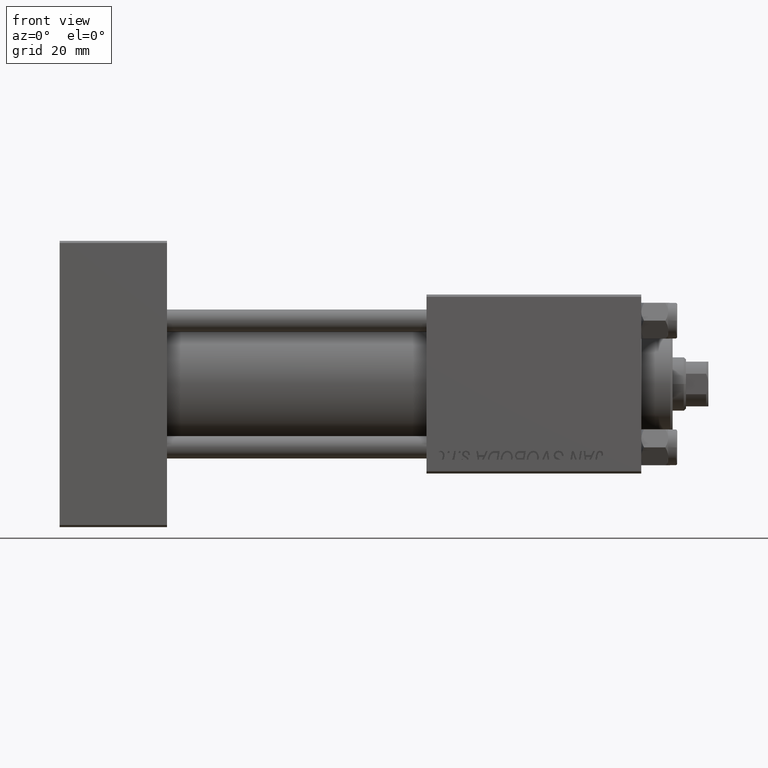
[diagram: clean part render]
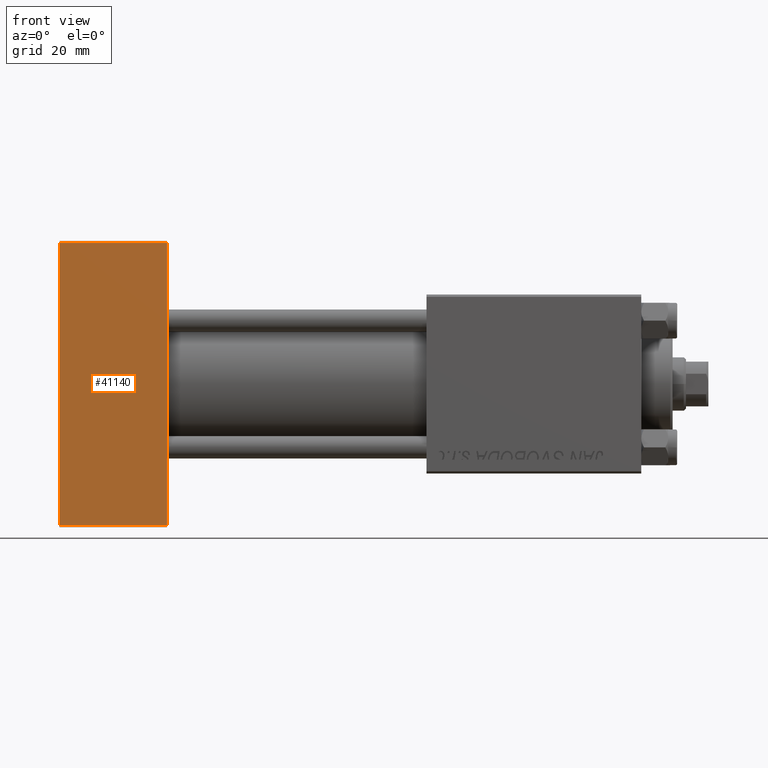
[diagram: same view with one face highlighted and labeled with its STEP entity id]
A machine part, front view. The second image highlights one B-rep face of the part: STEP entity #41140.
In plain terms, the highlighted planar face has unit normal (0, 1, 0).
Its self-contained STEP definition (entity closure, byte-faithful):
#1398 = CARTESIAN_POINT ( 'NONE',  ( 24.00000000000000000, -20.00000000000000355, 31.50000000000000711 ) ) ;
#7077 = EDGE_CURVE ( 'NONE', #15912, #12172, #19133, .T. ) ;
#8816 = ORIENTED_EDGE ( 'NONE', *, *, #22340, .T. ) ;
#10901 = CARTESIAN_POINT ( 'NONE',  ( 24.00000000000000000, -20.00000000000000355, 32.00000000000000000 ) ) ;
#11137 = LINE ( 'NONE', #49499, #15923 ) ;
#12079 = CARTESIAN_POINT ( 'NONE',  ( 24.00000000000000000, -20.00000000000000355, 31.50000000000000711 ) ) ;
#12172 = VERTEX_POINT ( 'NONE', #25430 ) ;
#12694 = EDGE_CURVE ( 'NONE', #30142, #15912, #11137, .T. ) ;
#14933 = DIRECTION ( 'NONE',  ( 0.000000000000000000, 0.000000000000000000, -1.000000000000000000 ) ) ;
#15831 = CARTESIAN_POINT ( 'NONE',  ( 24.00000000000000000, -20.00000000000000355, -31.49999999999997158 ) ) ;
#15912 = VERTEX_POINT ( 'NONE', #49636 ) ;
#15923 = VECTOR ( 'NONE', #14933, 1000.000000000000000 ) ;
#18450 = CARTESIAN_POINT ( 'NONE',  ( 0.000000000000000000, -20.00000000000000355, 31.50000000000000711 ) ) ;
#18599 = VECTOR ( 'NONE', #47753, 1000.000000000000000 ) ;
#19133 = LINE ( 'NONE', #15831, #36724 ) ;
#22340 = EDGE_CURVE ( 'NONE', #40735, #30142, #31714, .T. ) ;
#22825 = ORIENTED_EDGE ( 'NONE', *, *, #12694, .T. ) ;
#25430 = CARTESIAN_POINT ( 'NONE',  ( 24.00000000000000000, -20.00000000000000355, -31.49999999999997158 ) ) ;
#27299 = EDGE_CURVE ( 'NONE', #40735, #12172, #32382, .T. ) ;
#28591 = CARTESIAN_POINT ( 'NONE',  ( 24.00000000000000000, -20.00000000000000355, 32.00000000000000000 ) ) ;
#30142 = VERTEX_POINT ( 'NONE', #18450 ) ;
#31097 = DIRECTION ( 'NONE',  ( 0.000000000000000000, -0.000000000000000000, 1.000000000000000000 ) ) ;
#31714 = LINE ( 'NONE', #1398, #35373 ) ;
#32382 = LINE ( 'NONE', #28591, #18599 ) ;
#35373 = VECTOR ( 'NONE', #43310, 1000.000000000000000 ) ;
#36554 = AXIS2_PLACEMENT_3D ( 'NONE', #10901, #42439, #31097 ) ;
#36724 = VECTOR ( 'NONE', #46605, 1000.000000000000000 ) ;
#37453 = ORIENTED_EDGE ( 'NONE', *, *, #27299, .F. ) ;
#38490 = ORIENTED_EDGE ( 'NONE', *, *, #7077, .T. ) ;
#40735 = VERTEX_POINT ( 'NONE', #12079 ) ;
#41140 = ADVANCED_FACE ( 'NONE', ( #41690 ), #42188, .F. ) ;
#41690 = FACE_OUTER_BOUND ( 'NONE', #49256, .T. ) ;
#42188 = PLANE ( 'NONE',  #36554 ) ;
#42439 = DIRECTION ( 'NONE',  ( -0.000000000000000000, 1.000000000000000000, 0.000000000000000000 ) ) ;
#43310 = DIRECTION ( 'NONE',  ( -1.000000000000000000, 0.000000000000000000, 0.000000000000000000 ) ) ;
#46605 = DIRECTION ( 'NONE',  ( 1.000000000000000000, 0.000000000000000000, 0.000000000000000000 ) ) ;
#47753 = DIRECTION ( 'NONE',  ( 0.000000000000000000, 0.000000000000000000, -1.000000000000000000 ) ) ;
#49256 = EDGE_LOOP ( 'NONE', ( #22825, #38490, #37453, #8816 ) ) ;
#49499 = CARTESIAN_POINT ( 'NONE',  ( 0.000000000000000000, -20.00000000000000355, 32.00000000000000000 ) ) ;
#49636 = CARTESIAN_POINT ( 'NONE',  ( 0.000000000000000000, -20.00000000000000355, -31.49999999999997158 ) ) ;